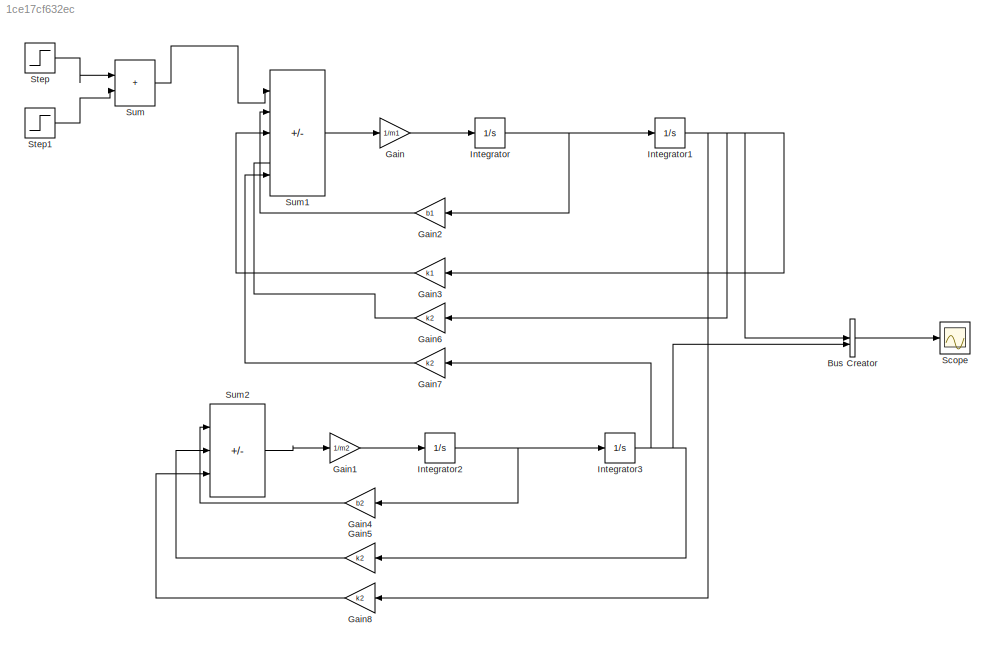
MODEL slx_1ce17cf632ec
KIND model
CONFIG AbsTol = auto
CONFIG EnableMultiTasking = off
CONFIG FixedStep = auto
CONFIG MaxStep = auto
CONFIG MinStep = auto
CONFIG RelTol = 1e-3
CONFIG SampleTimeConstraint = Unconstrained
CONFIG SolverName = VariableStepAuto
CONFIG StartTime = 0.0
CONFIG StopTime = 10.0
BLOCK [BusCreator] Bus Creator
  DisplayOption = bar
  InheritFromInputs = on
  Inputs = 2
BLOCK [Gain] Gain
  Gain = 1/m1
BLOCK [Gain] Gain1
  Gain = 1/m2
BLOCK [Gain] Gain2
  Gain = b1
BLOCK [Gain] Gain3
  Gain = k1
BLOCK [Gain] Gain4
  Gain = b2
BLOCK [Gain] Gain5
  Gain = k2
BLOCK [Gain] Gain6
  Gain = k2
BLOCK [Gain] Gain7
  Gain = k2
BLOCK [Gain] Gain8
  Gain = k2
BLOCK [Integrator] Integrator
BLOCK [Integrator] Integrator1
BLOCK [Integrator] Integrator2
BLOCK [Integrator] Integrator3
BLOCK [Scope] Scope
  Floating = off
  NumInputPorts = 1
  ScopeSpecificationString = Simulink.scopes.TimeScopeBlockCfg('CurrentConfiguration', extmgr.ConfigurationSet(extmgr.Configuration('Core','General UI',true),extmgr.Configuration('Core','Source UI',true),extmgr.Configuration('Sources','WiredSimulink',true),extmgr.Configuration('Visuals','Time Domain',true,'SerializedDisplays',{struct('MinYLimReal','-0.23854','MaxYLimReal','2.14687','YLabelReal','','MinYLimMag','0.00000','MaxY...<+1345ch>
BLOCK [Step] Step
  After = 100
  SampleTime = 0
BLOCK [Step] Step1
  After = -100
  SampleTime = 0
  Time = 5
BLOCK [Sum] Sum
  IconShape = rectangular
  Inputs = |++
BLOCK [Sum] Sum1
  IconShape = rectangular
  Inputs = |+---+
BLOCK [Sum] Sum2
  IconShape = rectangular
  Inputs = |--+
LINE Bus Creator:1 -> Scope:1
LINE Gain1:1 -> Integrator2:1
LINE Gain2:1 -> Sum1:2
LINE Gain3:1 -> Sum1:3
LINE Gain4:1 -> Sum2:1
LINE Gain5:1 -> Sum2:2
LINE Gain6:1 -> Sum1:4
LINE Gain7:1 -> Sum1:5
LINE Gain8:1 -> Sum2:3
LINE Gain:1 -> Integrator:1
NET Integrator1:1 -> Bus Creator:1, Gain3:1, Gain6:1, Gain8:1
NET Integrator2:1 -> Gain4:1, Integrator3:1
NET Integrator3:1 -> Bus Creator:2, Gain5:1, Gain7:1
NET Integrator:1 -> Gain2:1, Integrator1:1
LINE Step1:1 -> Sum:2
LINE Step:1 -> Sum:1
LINE Sum1:1 -> Gain:1
LINE Sum2:1 -> Gain1:1
LINE Sum:1 -> Sum1:1
note: NET lines group one-source signal fan-out (src -> all destinations, sorted); 1:1 wires keep LINE
